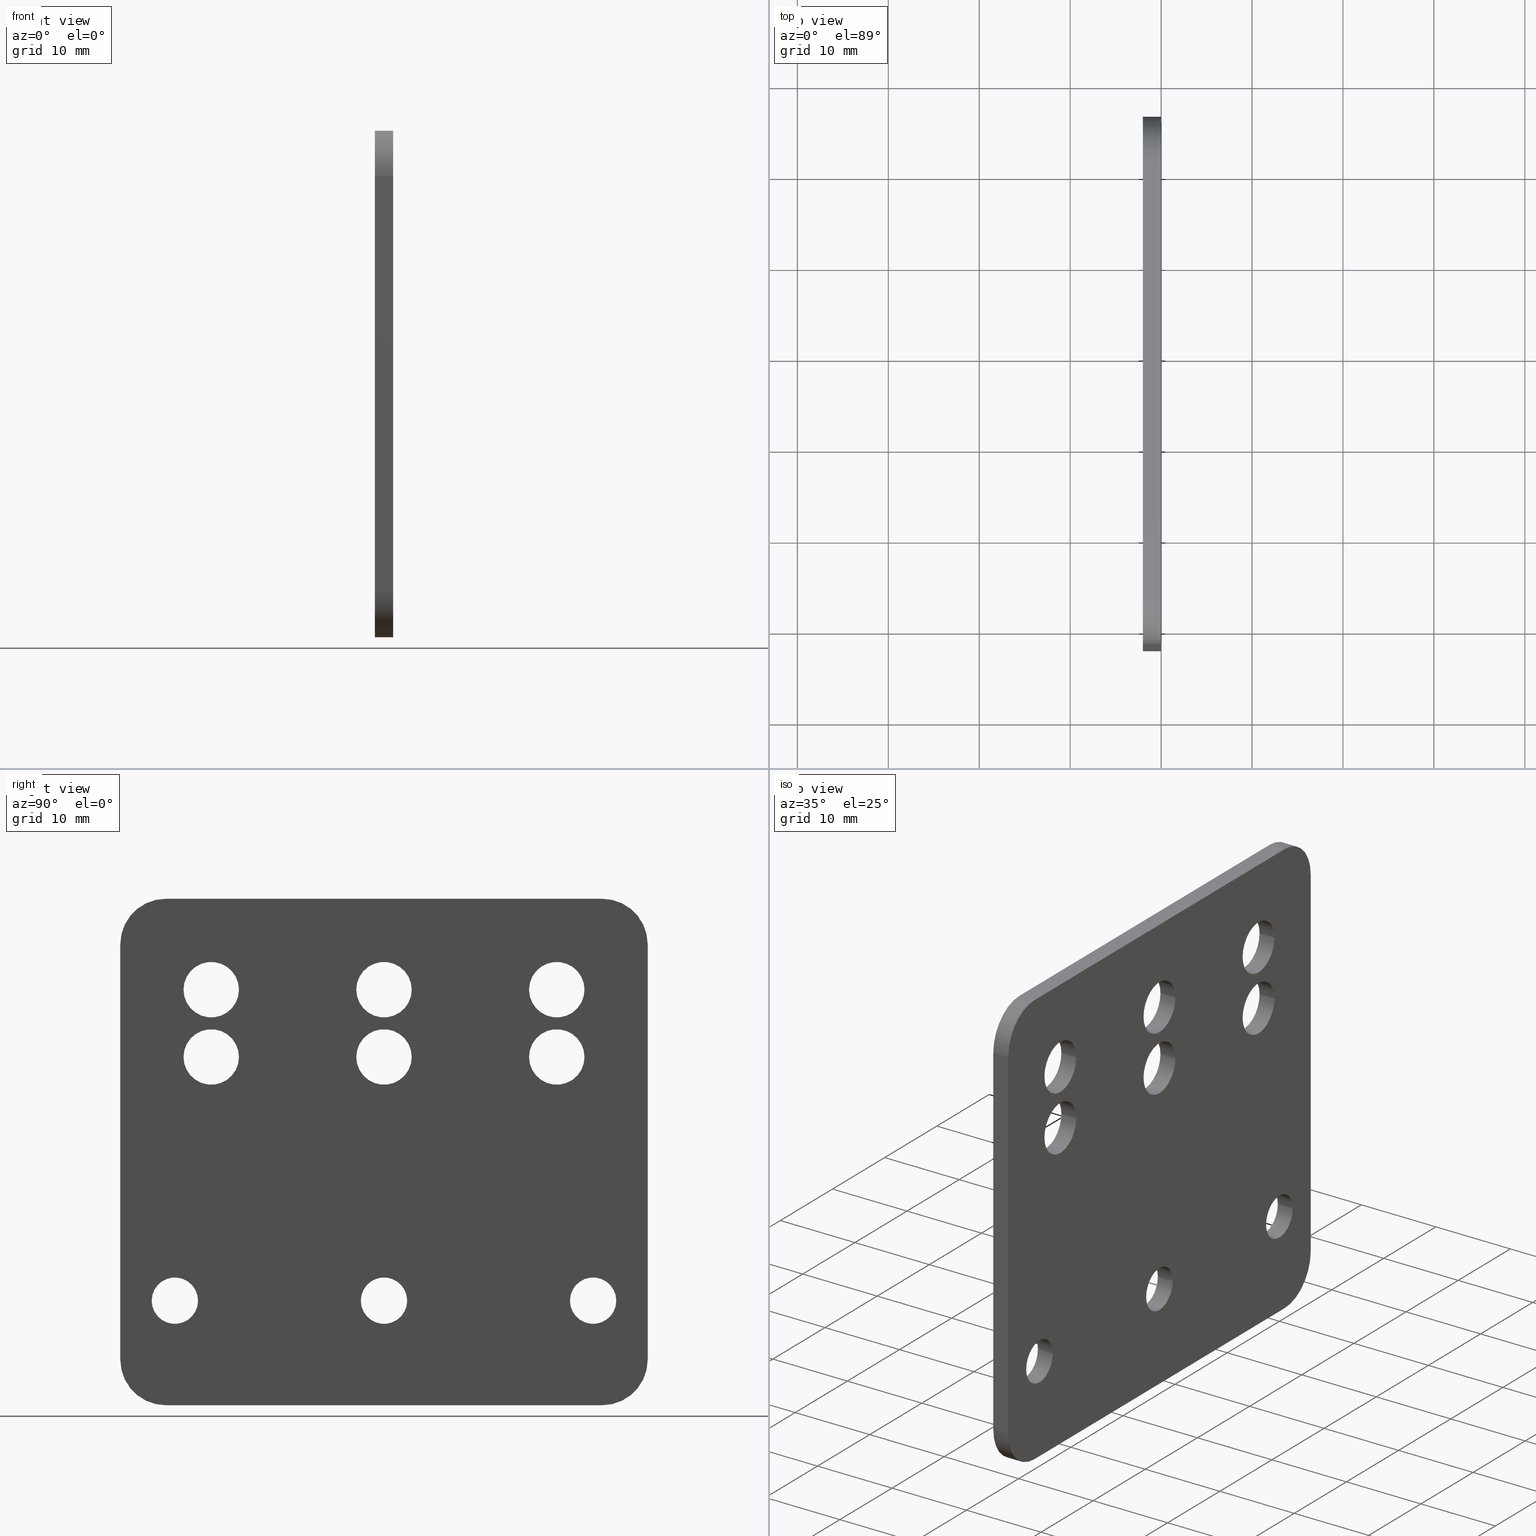
[diagram: canonical four-view strip — front | top / right | iso, engineering-drawing reading convention]
A machine part, canonical four-view strip (front | top / right | iso — engineering-drawing reading convention). The complete STEP part file that produces these views, byte-faithful:
ISO-10303-21;
HEADER;
FILE_DESCRIPTION(('STEP AP214'),'1');
FILE_NAME('GS34.stp','2017-02-01T07:32:37',(' '),(' '),'Spatial InterOp 3D',' ',' ');
FILE_SCHEMA(('automotive_design'));
ENDSEC;
DATA;
#1=MECHANICAL_DESIGN_GEOMETRIC_PRESENTATION_REPRESENTATION(' ',(#10,#11,#12,#13,#14,#15,#16,#17,#18,#19,#20,#21,#22,#23,#24,#25,#26,#27,#28),#6);
#2=PRODUCT_DEFINITION_CONTEXT('',#29,'design');
#3=APPLICATION_PROTOCOL_DEFINITION('INTERNATIONAL STANDARD','automotive_design',1994,#29);
#4=PRODUCT_CATEGORY_RELATIONSHIP('NONE','NONE',#30,#31);
#5=SHAPE_DEFINITION_REPRESENTATION(#32,#33);
#6= (GEOMETRIC_REPRESENTATION_CONTEXT(3)GLOBAL_UNCERTAINTY_ASSIGNED_CONTEXT((#36))GLOBAL_UNIT_ASSIGNED_CONTEXT((#38,#39,#40))REPRESENTATION_CONTEXT('NONE','WORKSPACE'));
#10=STYLED_ITEM('',(#42),#43);
#11=STYLED_ITEM('',(#44),#45);
#12=STYLED_ITEM('',(#46),#47);
#13=STYLED_ITEM('',(#48),#49);
#14=STYLED_ITEM('',(#50),#51);
#15=STYLED_ITEM('',(#52),#53);
#16=STYLED_ITEM('',(#54),#55);
#17=STYLED_ITEM('',(#56),#57);
#18=STYLED_ITEM('',(#58),#59);
#19=STYLED_ITEM('',(#60),#61);
#20=STYLED_ITEM('',(#62),#63);
#21=STYLED_ITEM('',(#64),#65);
#22=STYLED_ITEM('',(#66),#67);
#23=STYLED_ITEM('',(#68),#69);
#24=STYLED_ITEM('',(#70),#71);
#25=STYLED_ITEM('',(#72),#73);
#26=STYLED_ITEM('',(#74),#75);
#27=STYLED_ITEM('',(#76),#77);
#28=STYLED_ITEM('',(#78),#79);
#29=APPLICATION_CONTEXT(' ');
#30=PRODUCT_CATEGORY('part','NONE');
#31=PRODUCT_RELATED_PRODUCT_CATEGORY('detail',' ',(#80));
#32=PRODUCT_DEFINITION_SHAPE('NONE','NONE',#81);
#33=ADVANCED_BREP_SHAPE_REPRESENTATION('GS34',(#82,#83),#6);
#36=UNCERTAINTY_MEASURE_WITH_UNIT(LENGTH_MEASURE(0.001),#38,'','');
#38= (CONVERSION_BASED_UNIT('MILLIMETRE',#86)LENGTH_UNIT()NAMED_UNIT(#89));
#39= (NAMED_UNIT(#91)PLANE_ANGLE_UNIT()SI_UNIT($,.RADIAN.));
#40= (NAMED_UNIT(#91)SOLID_ANGLE_UNIT()SI_UNIT($,.STERADIAN.));
#42=PRESENTATION_STYLE_ASSIGNMENT((#97));
#43=ADVANCED_FACE('',(#98,#99),#100,.F.);
#44=PRESENTATION_STYLE_ASSIGNMENT((#101));
#45=ADVANCED_FACE('',(#102),#103,.T.);
#46=PRESENTATION_STYLE_ASSIGNMENT((#104));
#47=ADVANCED_FACE('',(#105,#106),#107,.F.);
#48=PRESENTATION_STYLE_ASSIGNMENT((#108));
#49=ADVANCED_FACE('',(#109,#110),#111,.F.);
#50=PRESENTATION_STYLE_ASSIGNMENT((#112));
#51=ADVANCED_FACE('',(#113,#114),#115,.F.);
#52=PRESENTATION_STYLE_ASSIGNMENT((#116));
#53=ADVANCED_FACE('',(#117,#118),#119,.F.);
#54=PRESENTATION_STYLE_ASSIGNMENT((#120));
#55=ADVANCED_FACE('',(#121),#122,.F.);
#56=PRESENTATION_STYLE_ASSIGNMENT((#123));
#57=ADVANCED_FACE('',(#124,#125),#126,.F.);
#58=PRESENTATION_STYLE_ASSIGNMENT((#127));
#59=ADVANCED_FACE('',(#128),#129,.F.);
#60=PRESENTATION_STYLE_ASSIGNMENT((#130));
#61=ADVANCED_FACE('',(#131,#132,#133,#134,#135,#136,#137,#138,#139,#140),#141,.F.);
#62=PRESENTATION_STYLE_ASSIGNMENT((#142));
#63=ADVANCED_FACE('',(#143,#144),#145,.F.);
#64=PRESENTATION_STYLE_ASSIGNMENT((#146));
#65=ADVANCED_FACE('',(#147),#148,.T.);
#66=PRESENTATION_STYLE_ASSIGNMENT((#149));
#67=ADVANCED_FACE('',(#150,#151),#152,.F.);
#68=PRESENTATION_STYLE_ASSIGNMENT((#153));
#69=ADVANCED_FACE('',(#154),#155,.T.);
#70=PRESENTATION_STYLE_ASSIGNMENT((#156));
#71=ADVANCED_FACE('',(#157),#158,.T.);
#72=PRESENTATION_STYLE_ASSIGNMENT((#159));
#73=ADVANCED_FACE('',(#160),#161,.F.);
#74=PRESENTATION_STYLE_ASSIGNMENT((#162));
#75=ADVANCED_FACE('',(#163),#164,.F.);
#76=PRESENTATION_STYLE_ASSIGNMENT((#165));
#77=ADVANCED_FACE('',(#166,#167),#168,.F.);
#78=PRESENTATION_STYLE_ASSIGNMENT((#169));
#79=ADVANCED_FACE('',(#170,#171,#172,#173,#174,#175,#176,#177,#178,#179),#180,.T.);
#80=PRODUCT('GS34','GS34','PART-GS34-DESC',(#181));
#81=PRODUCT_DEFINITION('NONE','NONE',#182,#2);
#82=MANIFOLD_SOLID_BREP('GS34',#183);
#83=AXIS2_PLACEMENT_3D('',#184,#185,#186);
#86=LENGTH_MEASURE_WITH_UNIT(LENGTH_MEASURE(1.0),#187);
#89=DIMENSIONAL_EXPONENTS(1.0,0.0,0.0,0.0,0.0,0.0,0.0);
#91=DIMENSIONAL_EXPONENTS(0.0,0.0,0.0,0.0,0.0,0.0,0.0);
#97=SURFACE_STYLE_USAGE(.BOTH.,#188);
#98=FACE_OUTER_BOUND('',#189,.T.);
#99=FACE_OUTER_BOUND('',#190,.T.);
#100=CYLINDRICAL_SURFACE('',#191,3.05);
#101=SURFACE_STYLE_USAGE(.BOTH.,#192);
#102=FACE_OUTER_BOUND('',#193,.T.);
#103=CYLINDRICAL_SURFACE('',#194,5.0);
#104=SURFACE_STYLE_USAGE(.BOTH.,#195);
#105=FACE_OUTER_BOUND('',#196,.T.);
#106=FACE_OUTER_BOUND('',#197,.T.);
#107=CYLINDRICAL_SURFACE('',#198,2.55);
#108=SURFACE_STYLE_USAGE(.BOTH.,#199);
#109=FACE_OUTER_BOUND('',#200,.T.);
#110=FACE_OUTER_BOUND('',#201,.T.);
#111=CYLINDRICAL_SURFACE('',#202,2.55);
#112=SURFACE_STYLE_USAGE(.BOTH.,#203);
#113=FACE_OUTER_BOUND('',#204,.T.);
#114=FACE_OUTER_BOUND('',#205,.T.);
#115=CYLINDRICAL_SURFACE('',#206,3.05);
#116=SURFACE_STYLE_USAGE(.BOTH.,#207);
#117=FACE_OUTER_BOUND('',#208,.T.);
#118=FACE_OUTER_BOUND('',#209,.T.);
#119=CYLINDRICAL_SURFACE('',#210,3.05);
#120=SURFACE_STYLE_USAGE(.BOTH.,#211);
#121=FACE_OUTER_BOUND('',#212,.T.);
#122=PLANE('',#213);
#123=SURFACE_STYLE_USAGE(.BOTH.,#214);
#124=FACE_OUTER_BOUND('',#215,.T.);
#125=FACE_OUTER_BOUND('',#216,.T.);
#126=CYLINDRICAL_SURFACE('',#217,3.05);
#127=SURFACE_STYLE_USAGE(.BOTH.,#218);
#128=FACE_OUTER_BOUND('',#219,.T.);
#129=PLANE('',#220);
#130=SURFACE_STYLE_USAGE(.BOTH.,#221);
#131=FACE_BOUND('',#222,.T.);
#132=FACE_BOUND('',#223,.T.);
#133=FACE_BOUND('',#224,.T.);
#134=FACE_BOUND('',#225,.T.);
#135=FACE_BOUND('',#226,.T.);
#136=FACE_BOUND('',#227,.T.);
#137=FACE_BOUND('',#228,.T.);
#138=FACE_BOUND('',#229,.T.);
#139=FACE_BOUND('',#230,.T.);
#140=FACE_OUTER_BOUND('',#231,.T.);
#141=PLANE('',#232);
#142=SURFACE_STYLE_USAGE(.BOTH.,#233);
#143=FACE_OUTER_BOUND('',#234,.T.);
#144=FACE_OUTER_BOUND('',#235,.T.);
#145=CYLINDRICAL_SURFACE('',#236,3.05);
#146=SURFACE_STYLE_USAGE(.BOTH.,#237);
#147=FACE_OUTER_BOUND('',#238,.T.);
#148=CYLINDRICAL_SURFACE('',#239,5.0);
#149=SURFACE_STYLE_USAGE(.BOTH.,#240);
#150=FACE_OUTER_BOUND('',#241,.T.);
#151=FACE_OUTER_BOUND('',#242,.T.);
#152=CYLINDRICAL_SURFACE('',#243,3.05);
#153=SURFACE_STYLE_USAGE(.BOTH.,#244);
#154=FACE_OUTER_BOUND('',#245,.T.);
#155=CYLINDRICAL_SURFACE('',#246,5.0);
#156=SURFACE_STYLE_USAGE(.BOTH.,#247);
#157=FACE_OUTER_BOUND('',#248,.T.);
#158=CYLINDRICAL_SURFACE('',#249,5.0);
#159=SURFACE_STYLE_USAGE(.BOTH.,#250);
#160=FACE_OUTER_BOUND('',#251,.T.);
#161=PLANE('',#252);
#162=SURFACE_STYLE_USAGE(.BOTH.,#253);
#163=FACE_OUTER_BOUND('',#254,.T.);
#164=PLANE('',#255);
#165=SURFACE_STYLE_USAGE(.BOTH.,#256);
#166=FACE_OUTER_BOUND('',#257,.T.);
#167=FACE_OUTER_BOUND('',#258,.T.);
#168=CYLINDRICAL_SURFACE('',#259,2.55);
#169=SURFACE_STYLE_USAGE(.BOTH.,#260);
#170=FACE_BOUND('',#261,.T.);
#171=FACE_BOUND('',#262,.T.);
#172=FACE_BOUND('',#263,.T.);
#173=FACE_BOUND('',#264,.T.);
#174=FACE_BOUND('',#265,.T.);
#175=FACE_BOUND('',#266,.T.);
#176=FACE_BOUND('',#267,.T.);
#177=FACE_BOUND('',#268,.T.);
#178=FACE_BOUND('',#269,.T.);
#179=FACE_OUTER_BOUND('',#270,.T.);
#180=PLANE('',#271);
#181=PRODUCT_CONTEXT('',#29,'mechanical');
#182=PRODUCT_DEFINITION_FORMATION_WITH_SPECIFIED_SOURCE(' ','NONE',#80,.NOT_KNOWN.);
#183=CLOSED_SHELL('',(#43,#61,#51,#53,#63,#45,#59,#65,#55,#69,#75,#71,#73,#67,#79,#47,#49,#77,#57));
#184=CARTESIAN_POINT('',(0.0,0.0,0.0));
#185=DIRECTION('',(0.0,0.0,1.0));
#186=DIRECTION('',(1.0,0.0,0.0));
#187= (NAMED_UNIT(#89)LENGTH_UNIT()SI_UNIT(.MILLI.,.METRE.));
#188=SURFACE_SIDE_STYLE('',(#273));
#189=EDGE_LOOP('',(#274));
#190=EDGE_LOOP('',(#275));
#191=AXIS2_PLACEMENT_3D('',#276,#277,#278);
#192=SURFACE_SIDE_STYLE('',(#279));
#193=EDGE_LOOP('',(#280,#281,#282,#283));
#194=AXIS2_PLACEMENT_3D('',#284,#285,#286);
#195=SURFACE_SIDE_STYLE('',(#287));
#196=EDGE_LOOP('',(#288));
#197=EDGE_LOOP('',(#289));
#198=AXIS2_PLACEMENT_3D('',#290,#291,#292);
#199=SURFACE_SIDE_STYLE('',(#293));
#200=EDGE_LOOP('',(#294));
#201=EDGE_LOOP('',(#295));
#202=AXIS2_PLACEMENT_3D('',#296,#297,#298);
#203=SURFACE_SIDE_STYLE('',(#299));
#204=EDGE_LOOP('',(#300));
#205=EDGE_LOOP('',(#301));
#206=AXIS2_PLACEMENT_3D('',#302,#303,#304);
#207=SURFACE_SIDE_STYLE('',(#305));
#208=EDGE_LOOP('',(#306));
#209=EDGE_LOOP('',(#307));
#210=AXIS2_PLACEMENT_3D('',#308,#309,#310);
#211=SURFACE_SIDE_STYLE('',(#311));
#212=EDGE_LOOP('',(#312,#313,#314,#315));
#213=AXIS2_PLACEMENT_3D('',#316,#317,#318);
#214=SURFACE_SIDE_STYLE('',(#319));
#215=EDGE_LOOP('',(#320));
#216=EDGE_LOOP('',(#321));
#217=AXIS2_PLACEMENT_3D('',#322,#323,#324);
#218=SURFACE_SIDE_STYLE('',(#325));
#219=EDGE_LOOP('',(#326,#327,#328,#329));
#220=AXIS2_PLACEMENT_3D('',#330,#331,#332);
#221=SURFACE_SIDE_STYLE('',(#333));
#222=EDGE_LOOP('',(#334));
#223=EDGE_LOOP('',(#335));
#224=EDGE_LOOP('',(#336));
#225=EDGE_LOOP('',(#337));
#226=EDGE_LOOP('',(#338));
#227=EDGE_LOOP('',(#339));
#228=EDGE_LOOP('',(#340));
#229=EDGE_LOOP('',(#341));
#230=EDGE_LOOP('',(#342));
#231=EDGE_LOOP('',(#343,#344,#345,#346,#347,#348,#349,#350));
#232=AXIS2_PLACEMENT_3D('',#351,#352,#353);
#233=SURFACE_SIDE_STYLE('',(#354));
#234=EDGE_LOOP('',(#355));
#235=EDGE_LOOP('',(#356));
#236=AXIS2_PLACEMENT_3D('',#357,#358,#359);
#237=SURFACE_SIDE_STYLE('',(#360));
#238=EDGE_LOOP('',(#361,#362,#363,#364));
#239=AXIS2_PLACEMENT_3D('',#365,#366,#367);
#240=SURFACE_SIDE_STYLE('',(#368));
#241=EDGE_LOOP('',(#369));
#242=EDGE_LOOP('',(#370));
#243=AXIS2_PLACEMENT_3D('',#371,#372,#373);
#244=SURFACE_SIDE_STYLE('',(#374));
#245=EDGE_LOOP('',(#375,#376,#377,#378));
#246=AXIS2_PLACEMENT_3D('',#379,#380,#381);
#247=SURFACE_SIDE_STYLE('',(#382));
#248=EDGE_LOOP('',(#383,#384,#385,#386));
#249=AXIS2_PLACEMENT_3D('',#387,#388,#389);
#250=SURFACE_SIDE_STYLE('',(#390));
#251=EDGE_LOOP('',(#391,#392,#393,#394));
#252=AXIS2_PLACEMENT_3D('',#395,#396,#397);
#253=SURFACE_SIDE_STYLE('',(#398));
#254=EDGE_LOOP('',(#399,#400,#401,#402));
#255=AXIS2_PLACEMENT_3D('',#403,#404,#405);
#256=SURFACE_SIDE_STYLE('',(#406));
#257=EDGE_LOOP('',(#407));
#258=EDGE_LOOP('',(#408));
#259=AXIS2_PLACEMENT_3D('',#409,#410,#411);
#260=SURFACE_SIDE_STYLE('',(#412));
#261=EDGE_LOOP('',(#413));
#262=EDGE_LOOP('',(#414));
#263=EDGE_LOOP('',(#415));
#264=EDGE_LOOP('',(#416));
#265=EDGE_LOOP('',(#417));
#266=EDGE_LOOP('',(#418));
#267=EDGE_LOOP('',(#419));
#268=EDGE_LOOP('',(#420));
#269=EDGE_LOOP('',(#421));
#270=EDGE_LOOP('',(#422,#423,#424,#425,#426,#427,#428,#429));
#271=AXIS2_PLACEMENT_3D('',#430,#431,#432);
#273=SURFACE_STYLE_FILL_AREA(#433);
#274=ORIENTED_EDGE('',*,*,#434,.F.);
#275=ORIENTED_EDGE('',*,*,#435,.T.);
#276=CARTESIAN_POINT('',(-1.99999999999978,-4.00000000000315,34.1999999999976));
#277=DIRECTION('',(1.0,0.0,0.0));
#278=DIRECTION('',(0.0,1.0,0.0));
#279=SURFACE_STYLE_FILL_AREA(#436);
#280=ORIENTED_EDGE('',*,*,#437,.T.);
#281=ORIENTED_EDGE('',*,*,#438,.F.);
#282=ORIENTED_EDGE('',*,*,#439,.F.);
#283=ORIENTED_EDGE('',*,*,#440,.T.);
#284=CARTESIAN_POINT('',(-1.99999999999978,-47.0000000000033,-6.50000000000175));
#285=DIRECTION('',(1.0,0.0,0.0));
#286=DIRECTION('',(0.0,1.0,0.0));
#287=SURFACE_STYLE_FILL_AREA(#441);
#288=ORIENTED_EDGE('',*,*,#442,.F.);
#289=ORIENTED_EDGE('',*,*,#443,.T.);
#290=CARTESIAN_POINT('',(-1.99999999999978,-2.7000970903579E-012,-1.79543879763599E-012));
#291=DIRECTION('',(1.0,0.0,0.0));
#292=DIRECTION('',(0.0,1.0,0.0));
#293=SURFACE_STYLE_FILL_AREA(#444);
#294=ORIENTED_EDGE('',*,*,#445,.F.);
#295=ORIENTED_EDGE('',*,*,#446,.T.);
#296=CARTESIAN_POINT('',(-1.99999999999978,-46.000000000003,-1.79543879763599E-012));
#297=DIRECTION('',(1.0,0.0,0.0));
#298=DIRECTION('',(0.0,1.0,0.0));
#299=SURFACE_STYLE_FILL_AREA(#447);
#300=ORIENTED_EDGE('',*,*,#448,.F.);
#301=ORIENTED_EDGE('',*,*,#449,.T.);
#302=CARTESIAN_POINT('',(-1.99999999999978,-4.00000000000315,26.7999999999979));
#303=DIRECTION('',(1.0,0.0,0.0));
#304=DIRECTION('',(0.0,1.0,0.0));
#305=SURFACE_STYLE_FILL_AREA(#450);
#306=ORIENTED_EDGE('',*,*,#451,.F.);
#307=ORIENTED_EDGE('',*,*,#452,.T.);
#308=CARTESIAN_POINT('',(-1.99999999999978,-23.0000000000033,26.7999999999979));
#309=DIRECTION('',(1.0,0.0,0.0));
#310=DIRECTION('',(0.0,1.0,0.0));
#311=SURFACE_STYLE_FILL_AREA(#453);
#312=ORIENTED_EDGE('',*,*,#454,.T.);
#313=ORIENTED_EDGE('',*,*,#455,.F.);
#314=ORIENTED_EDGE('',*,*,#456,.F.);
#315=ORIENTED_EDGE('',*,*,#457,.T.);
#316=CARTESIAN_POINT('',(-1.99999999999978,-47.0000000000033,44.1999999999982));
#317=DIRECTION('',(0.0,0.0,-1.0));
#318=DIRECTION('',(1.0,0.0,0.0));
#319=SURFACE_STYLE_FILL_AREA(#458);
#320=ORIENTED_EDGE('',*,*,#459,.F.);
#321=ORIENTED_EDGE('',*,*,#460,.T.);
#322=CARTESIAN_POINT('',(-1.99999999999978,-42.0000000000025,26.7999999999979));
#323=DIRECTION('',(1.0,0.0,0.0));
#324=DIRECTION('',(0.0,1.0,0.0));
#325=SURFACE_STYLE_FILL_AREA(#461);
#326=ORIENTED_EDGE('',*,*,#462,.T.);
#327=ORIENTED_EDGE('',*,*,#463,.F.);
#328=ORIENTED_EDGE('',*,*,#464,.F.);
#329=ORIENTED_EDGE('',*,*,#438,.T.);
#330=CARTESIAN_POINT('',(-1.99999999999978,-52.0000000000032,-6.50000000000175));
#331=DIRECTION('',(0.0,1.0,0.0));
#332=DIRECTION('',(-1.0,0.0,0.0));
#333=SURFACE_STYLE_FILL_AREA(#465);
#334=ORIENTED_EDGE('',*,*,#435,.F.);
#335=ORIENTED_EDGE('',*,*,#443,.F.);
#336=ORIENTED_EDGE('',*,*,#446,.F.);
#337=ORIENTED_EDGE('',*,*,#466,.F.);
#338=ORIENTED_EDGE('',*,*,#460,.F.);
#339=ORIENTED_EDGE('',*,*,#452,.F.);
#340=ORIENTED_EDGE('',*,*,#449,.F.);
#341=ORIENTED_EDGE('',*,*,#467,.F.);
#342=ORIENTED_EDGE('',*,*,#468,.F.);
#343=ORIENTED_EDGE('',*,*,#437,.F.);
#344=ORIENTED_EDGE('',*,*,#469,.F.);
#345=ORIENTED_EDGE('',*,*,#470,.F.);
#346=ORIENTED_EDGE('',*,*,#471,.F.);
#347=ORIENTED_EDGE('',*,*,#472,.F.);
#348=ORIENTED_EDGE('',*,*,#454,.F.);
#349=ORIENTED_EDGE('',*,*,#473,.F.);
#350=ORIENTED_EDGE('',*,*,#462,.F.);
#351=CARTESIAN_POINT('',(0.0,-47.0000000000033,-6.50000000000175));
#352=DIRECTION('',(-1.0,0.0,0.0));
#353=DIRECTION('',(0.0,-1.0,0.0));
#354=SURFACE_STYLE_FILL_AREA(#474);
#355=ORIENTED_EDGE('',*,*,#475,.F.);
#356=ORIENTED_EDGE('',*,*,#467,.T.);
#357=CARTESIAN_POINT('',(-1.99999999999978,-42.0000000000025,34.1999999999976));
#358=DIRECTION('',(1.0,0.0,0.0));
#359=DIRECTION('',(0.0,1.0,0.0));
#360=SURFACE_STYLE_FILL_AREA(#476);
#361=ORIENTED_EDGE('',*,*,#473,.T.);
#362=ORIENTED_EDGE('',*,*,#457,.F.);
#363=ORIENTED_EDGE('',*,*,#477,.F.);
#364=ORIENTED_EDGE('',*,*,#463,.T.);
#365=CARTESIAN_POINT('',(-1.99999999999978,-47.0000000000033,39.1999999999983));
#366=DIRECTION('',(1.0,0.0,0.0));
#367=DIRECTION('',(0.0,1.0,0.0));
#368=SURFACE_STYLE_FILL_AREA(#478);
#369=ORIENTED_EDGE('',*,*,#479,.F.);
#370=ORIENTED_EDGE('',*,*,#468,.T.);
#371=CARTESIAN_POINT('',(-1.99999999999978,-23.0000000000033,34.1999999999976));
#372=DIRECTION('',(1.0,0.0,0.0));
#373=DIRECTION('',(0.0,1.0,0.0));
#374=SURFACE_STYLE_FILL_AREA(#480);
#375=ORIENTED_EDGE('',*,*,#472,.T.);
#376=ORIENTED_EDGE('',*,*,#481,.F.);
#377=ORIENTED_EDGE('',*,*,#482,.F.);
#378=ORIENTED_EDGE('',*,*,#455,.T.);
#379=CARTESIAN_POINT('',(-1.99999999999978,0.999999999996746,39.1999999999983));
#380=DIRECTION('',(1.0,0.0,0.0));
#381=DIRECTION('',(0.0,1.0,0.0));
#382=SURFACE_STYLE_FILL_AREA(#483);
#383=ORIENTED_EDGE('',*,*,#470,.T.);
#384=ORIENTED_EDGE('',*,*,#484,.F.);
#385=ORIENTED_EDGE('',*,*,#485,.F.);
#386=ORIENTED_EDGE('',*,*,#486,.T.);
#387=CARTESIAN_POINT('',(-1.99999999999978,0.999999999996746,-6.50000000000175));
#388=DIRECTION('',(1.0,0.0,0.0));
#389=DIRECTION('',(0.0,1.0,0.0));
#390=SURFACE_STYLE_FILL_AREA(#487);
#391=ORIENTED_EDGE('',*,*,#469,.T.);
#392=ORIENTED_EDGE('',*,*,#440,.F.);
#393=ORIENTED_EDGE('',*,*,#488,.F.);
#394=ORIENTED_EDGE('',*,*,#484,.T.);
#395=CARTESIAN_POINT('',(-1.99999999999978,0.999999999996746,-11.5000000000025));
#396=DIRECTION('',(0.0,0.0,1.0));
#397=DIRECTION('',(-1.0,0.0,0.0));
#398=SURFACE_STYLE_FILL_AREA(#489);
#399=ORIENTED_EDGE('',*,*,#471,.T.);
#400=ORIENTED_EDGE('',*,*,#486,.F.);
#401=ORIENTED_EDGE('',*,*,#490,.F.);
#402=ORIENTED_EDGE('',*,*,#481,.T.);
#403=CARTESIAN_POINT('',(-1.99999999999978,5.99999999999664,39.1999999999983));
#404=DIRECTION('',(0.0,-1.0,0.0));
#405=DIRECTION('',(1.0,0.0,0.0));
#406=SURFACE_STYLE_FILL_AREA(#491);
#407=ORIENTED_EDGE('',*,*,#492,.F.);
#408=ORIENTED_EDGE('',*,*,#466,.T.);
#409=CARTESIAN_POINT('',(-1.99999999999978,-23.0000000000033,-1.79543879763599E-012));
#410=DIRECTION('',(1.0,0.0,0.0));
#411=DIRECTION('',(0.0,1.0,0.0));
#412=SURFACE_STYLE_FILL_AREA(#493);
#413=ORIENTED_EDGE('',*,*,#434,.T.);
#414=ORIENTED_EDGE('',*,*,#442,.T.);
#415=ORIENTED_EDGE('',*,*,#445,.T.);
#416=ORIENTED_EDGE('',*,*,#492,.T.);
#417=ORIENTED_EDGE('',*,*,#459,.T.);
#418=ORIENTED_EDGE('',*,*,#451,.T.);
#419=ORIENTED_EDGE('',*,*,#448,.T.);
#420=ORIENTED_EDGE('',*,*,#475,.T.);
#421=ORIENTED_EDGE('',*,*,#479,.T.);
#422=ORIENTED_EDGE('',*,*,#439,.T.);
#423=ORIENTED_EDGE('',*,*,#464,.T.);
#424=ORIENTED_EDGE('',*,*,#477,.T.);
#425=ORIENTED_EDGE('',*,*,#456,.T.);
#426=ORIENTED_EDGE('',*,*,#482,.T.);
#427=ORIENTED_EDGE('',*,*,#490,.T.);
#428=ORIENTED_EDGE('',*,*,#485,.T.);
#429=ORIENTED_EDGE('',*,*,#488,.T.);
#430=CARTESIAN_POINT('',(-1.99999999999978,-47.0000000000033,-6.50000000000175));
#431=DIRECTION('',(-1.0,0.0,0.0));
#432=DIRECTION('',(0.0,-1.0,0.0));
#433=FILL_AREA_STYLE('',(#494));
#434=EDGE_CURVE('',#495,#495,#496,.T.);
#435=EDGE_CURVE('',#497,#497,#498,.T.);
#436=FILL_AREA_STYLE('',(#499));
#437=EDGE_CURVE('',#500,#501,#502,.T.);
#438=EDGE_CURVE('',#503,#501,#504,.T.);
#439=EDGE_CURVE('',#505,#503,#506,.T.);
#440=EDGE_CURVE('',#505,#500,#507,.T.);
#441=FILL_AREA_STYLE('',(#508));
#442=EDGE_CURVE('',#509,#509,#510,.T.);
#443=EDGE_CURVE('',#511,#511,#512,.T.);
#444=FILL_AREA_STYLE('',(#513));
#445=EDGE_CURVE('',#514,#514,#515,.T.);
#446=EDGE_CURVE('',#516,#516,#517,.T.);
#447=FILL_AREA_STYLE('',(#518));
#448=EDGE_CURVE('',#519,#519,#520,.T.);
#449=EDGE_CURVE('',#521,#521,#522,.T.);
#450=FILL_AREA_STYLE('',(#523));
#451=EDGE_CURVE('',#524,#524,#525,.T.);
#452=EDGE_CURVE('',#526,#526,#527,.T.);
#453=FILL_AREA_STYLE('',(#528));
#454=EDGE_CURVE('',#529,#530,#531,.T.);
#455=EDGE_CURVE('',#532,#530,#533,.T.);
#456=EDGE_CURVE('',#534,#532,#535,.T.);
#457=EDGE_CURVE('',#534,#529,#536,.T.);
#458=FILL_AREA_STYLE('',(#537));
#459=EDGE_CURVE('',#538,#538,#539,.T.);
#460=EDGE_CURVE('',#540,#540,#541,.T.);
#461=FILL_AREA_STYLE('',(#542));
#462=EDGE_CURVE('',#501,#543,#544,.T.);
#463=EDGE_CURVE('',#545,#543,#546,.T.);
#464=EDGE_CURVE('',#503,#545,#547,.T.);
#465=FILL_AREA_STYLE('',(#548));
#466=EDGE_CURVE('',#549,#549,#550,.T.);
#467=EDGE_CURVE('',#551,#551,#552,.T.);
#468=EDGE_CURVE('',#553,#553,#554,.T.);
#469=EDGE_CURVE('',#555,#500,#556,.T.);
#470=EDGE_CURVE('',#557,#555,#558,.T.);
#471=EDGE_CURVE('',#559,#557,#560,.T.);
#472=EDGE_CURVE('',#530,#559,#561,.T.);
#473=EDGE_CURVE('',#543,#529,#562,.T.);
#474=FILL_AREA_STYLE('',(#563));
#475=EDGE_CURVE('',#564,#564,#565,.T.);
#476=FILL_AREA_STYLE('',(#566));
#477=EDGE_CURVE('',#545,#534,#567,.T.);
#478=FILL_AREA_STYLE('',(#568));
#479=EDGE_CURVE('',#569,#569,#570,.T.);
#480=FILL_AREA_STYLE('',(#571));
#481=EDGE_CURVE('',#572,#559,#573,.T.);
#482=EDGE_CURVE('',#532,#572,#574,.T.);
#483=FILL_AREA_STYLE('',(#575));
#484=EDGE_CURVE('',#576,#555,#577,.T.);
#485=EDGE_CURVE('',#578,#576,#579,.T.);
#486=EDGE_CURVE('',#578,#557,#580,.T.);
#487=FILL_AREA_STYLE('',(#581));
#488=EDGE_CURVE('',#576,#505,#582,.T.);
#489=FILL_AREA_STYLE('',(#583));
#490=EDGE_CURVE('',#572,#578,#584,.T.);
#491=FILL_AREA_STYLE('',(#585));
#492=EDGE_CURVE('',#586,#586,#587,.T.);
#493=FILL_AREA_STYLE('',(#588));
#494=FILL_AREA_STYLE_COLOUR('',#589);
#495=VERTEX_POINT('',#590);
#496=CIRCLE('',#591,3.05);
#497=VERTEX_POINT('',#592);
#498=CIRCLE('',#593,3.05);
#499=FILL_AREA_STYLE_COLOUR('',#594);
#500=VERTEX_POINT('',#595);
#501=VERTEX_POINT('',#596);
#502=CIRCLE('',#597,5.0);
#503=VERTEX_POINT('',#598);
#504=LINE('',#599,#600);
#505=VERTEX_POINT('',#601);
#506=CIRCLE('',#602,5.0);
#507=LINE('',#603,#604);
#508=FILL_AREA_STYLE_COLOUR('',#605);
#509=VERTEX_POINT('',#606);
#510=CIRCLE('',#607,2.55);
#511=VERTEX_POINT('',#608);
#512=CIRCLE('',#609,2.55);
#513=FILL_AREA_STYLE_COLOUR('',#610);
#514=VERTEX_POINT('',#611);
#515=CIRCLE('',#612,2.55);
#516=VERTEX_POINT('',#613);
#517=CIRCLE('',#614,2.55);
#518=FILL_AREA_STYLE_COLOUR('',#615);
#519=VERTEX_POINT('',#616);
#520=CIRCLE('',#617,3.05);
#521=VERTEX_POINT('',#618);
#522=CIRCLE('',#619,3.05);
#523=FILL_AREA_STYLE_COLOUR('',#620);
#524=VERTEX_POINT('',#621);
#525=CIRCLE('',#622,3.05);
#526=VERTEX_POINT('',#623);
#527=CIRCLE('',#624,3.05);
#528=FILL_AREA_STYLE_COLOUR('',#625);
#529=VERTEX_POINT('',#626);
#530=VERTEX_POINT('',#627);
#531=LINE('',#628,#629);
#532=VERTEX_POINT('',#630);
#533=LINE('',#631,#632);
#534=VERTEX_POINT('',#633);
#535=LINE('',#634,#635);
#536=LINE('',#636,#637);
#537=FILL_AREA_STYLE_COLOUR('',#638);
#538=VERTEX_POINT('',#639);
#539=CIRCLE('',#640,3.05);
#540=VERTEX_POINT('',#641);
#541=CIRCLE('',#642,3.05);
#542=FILL_AREA_STYLE_COLOUR('',#643);
#543=VERTEX_POINT('',#644);
#544=LINE('',#645,#646);
#545=VERTEX_POINT('',#647);
#546=LINE('',#648,#649);
#547=LINE('',#650,#651);
#548=FILL_AREA_STYLE_COLOUR('',#652);
#549=VERTEX_POINT('',#653);
#550=CIRCLE('',#654,2.55);
#551=VERTEX_POINT('',#655);
#552=CIRCLE('',#656,3.05);
#553=VERTEX_POINT('',#657);
#554=CIRCLE('',#658,3.05);
#555=VERTEX_POINT('',#659);
#556=LINE('',#660,#661);
#557=VERTEX_POINT('',#662);
#558=CIRCLE('',#663,5.0);
#559=VERTEX_POINT('',#664);
#560=LINE('',#665,#666);
#561=CIRCLE('',#667,5.0);
#562=CIRCLE('',#668,5.0);
#563=FILL_AREA_STYLE_COLOUR('',#669);
#564=VERTEX_POINT('',#670);
#565=CIRCLE('',#671,3.05);
#566=FILL_AREA_STYLE_COLOUR('',#672);
#567=CIRCLE('',#673,5.0);
#568=FILL_AREA_STYLE_COLOUR('',#674);
#569=VERTEX_POINT('',#675);
#570=CIRCLE('',#676,3.05);
#571=FILL_AREA_STYLE_COLOUR('',#677);
#572=VERTEX_POINT('',#678);
#573=LINE('',#679,#680);
#574=CIRCLE('',#681,5.0);
#575=FILL_AREA_STYLE_COLOUR('',#682);
#576=VERTEX_POINT('',#683);
#577=LINE('',#684,#685);
#578=VERTEX_POINT('',#686);
#579=CIRCLE('',#687,5.0);
#580=LINE('',#688,#689);
#581=FILL_AREA_STYLE_COLOUR('',#690);
#582=LINE('',#691,#692);
#583=FILL_AREA_STYLE_COLOUR('',#693);
#584=LINE('',#694,#695);
#585=FILL_AREA_STYLE_COLOUR('',#696);
#586=VERTEX_POINT('',#697);
#587=CIRCLE('',#698,2.55);
#588=FILL_AREA_STYLE_COLOUR('',#699);
#589=COLOUR_RGB('',0.752941191196442,0.752941191196442,0.752941191196442);
#590=CARTESIAN_POINT('',(-1.99999999999978,-0.950000000003151,34.1999999999976));
#591=AXIS2_PLACEMENT_3D('',#700,#701,#702);
#592=CARTESIAN_POINT('',(0.0,-0.950000000003151,34.1999999999976));
#593=AXIS2_PLACEMENT_3D('',#703,#704,#705);
#594=COLOUR_RGB('',0.752941191196442,0.752941191196442,0.752941191196442);
#595=CARTESIAN_POINT('',(0.0,-47.0000000000033,-11.5000000000025));
#596=CARTESIAN_POINT('',(0.0,-52.0000000000032,-6.50000000000175));
#597=AXIS2_PLACEMENT_3D('',#706,#707,#708);
#598=CARTESIAN_POINT('',(-1.99999999999978,-52.0000000000032,-6.50000000000175));
#599=CARTESIAN_POINT('',(-1.99999999999978,-52.0000000000032,-6.50000000000175));
#600=VECTOR('',#709,1.0);
#601=CARTESIAN_POINT('',(-1.99999999999978,-47.0000000000033,-11.5000000000025));
#602=AXIS2_PLACEMENT_3D('',#710,#711,#712);
#603=CARTESIAN_POINT('',(-1.99999999999978,-47.0000000000033,-11.5000000000025));
#604=VECTOR('',#713,1.0);
#605=COLOUR_RGB('',0.752941191196442,0.752941191196442,0.752941191196442);
#606=CARTESIAN_POINT('',(-1.99999999999978,2.54999999999757,-1.79543879763599E-012));
#607=AXIS2_PLACEMENT_3D('',#714,#715,#716);
#608=CARTESIAN_POINT('',(0.0,2.54999999999757,-1.79543879763599E-012));
#609=AXIS2_PLACEMENT_3D('',#717,#718,#719);
#610=COLOUR_RGB('',0.752941191196442,0.752941191196442,0.752941191196442);
#611=CARTESIAN_POINT('',(-1.99999999999978,-43.4500000000027,-1.79543879763599E-012));
#612=AXIS2_PLACEMENT_3D('',#720,#721,#722);
#613=CARTESIAN_POINT('',(0.0,-43.4500000000027,-1.79543879763599E-012));
#614=AXIS2_PLACEMENT_3D('',#723,#724,#725);
#615=COLOUR_RGB('',0.752941191196442,0.752941191196442,0.752941191196442);
#616=CARTESIAN_POINT('',(-1.99999999999978,-0.950000000003151,26.7999999999979));
#617=AXIS2_PLACEMENT_3D('',#726,#727,#728);
#618=CARTESIAN_POINT('',(0.0,-0.950000000003151,26.7999999999979));
#619=AXIS2_PLACEMENT_3D('',#729,#730,#731);
#620=COLOUR_RGB('',0.752941191196442,0.752941191196442,0.752941191196442);
#621=CARTESIAN_POINT('',(-1.99999999999978,-19.9500000000033,26.7999999999979));
#622=AXIS2_PLACEMENT_3D('',#732,#733,#734);
#623=CARTESIAN_POINT('',(0.0,-19.9500000000033,26.7999999999979));
#624=AXIS2_PLACEMENT_3D('',#735,#736,#737);
#625=COLOUR_RGB('',0.752941191196442,0.752941191196442,0.752941191196442);
#626=CARTESIAN_POINT('',(0.0,-47.0000000000033,44.1999999999982));
#627=CARTESIAN_POINT('',(0.0,0.999999999996746,44.1999999999982));
#628=CARTESIAN_POINT('',(0.0,-47.0000000000033,44.1999999999982));
#629=VECTOR('',#738,1.0);
#630=CARTESIAN_POINT('',(-1.99999999999978,0.999999999996746,44.1999999999982));
#631=CARTESIAN_POINT('',(-1.99999999999978,0.999999999996746,44.1999999999982));
#632=VECTOR('',#739,1.0);
#633=CARTESIAN_POINT('',(-1.99999999999978,-47.0000000000033,44.1999999999982));
#634=CARTESIAN_POINT('',(-1.99999999999978,-47.0000000000033,44.1999999999982));
#635=VECTOR('',#740,1.0);
#636=CARTESIAN_POINT('',(-1.99999999999978,-47.0000000000033,44.1999999999982));
#637=VECTOR('',#741,1.0);
#638=COLOUR_RGB('',0.752941191196442,0.752941191196442,0.752941191196442);
#639=CARTESIAN_POINT('',(-1.99999999999978,-38.9500000000025,26.7999999999979));
#640=AXIS2_PLACEMENT_3D('',#742,#743,#744);
#641=CARTESIAN_POINT('',(0.0,-38.9500000000025,26.7999999999979));
#642=AXIS2_PLACEMENT_3D('',#745,#746,#747);
#643=COLOUR_RGB('',0.752941191196442,0.752941191196442,0.752941191196442);
#644=CARTESIAN_POINT('',(0.0,-52.0000000000032,39.1999999999983));
#645=CARTESIAN_POINT('',(0.0,-52.0000000000032,-6.50000000000175));
#646=VECTOR('',#748,1.0);
#647=CARTESIAN_POINT('',(-1.99999999999978,-52.0000000000032,39.1999999999983));
#648=CARTESIAN_POINT('',(-1.99999999999978,-52.0000000000032,39.1999999999983));
#649=VECTOR('',#749,1.0);
#650=CARTESIAN_POINT('',(-1.99999999999978,-52.0000000000032,-6.50000000000175));
#651=VECTOR('',#750,1.0);
#652=COLOUR_RGB('',0.752941191196442,0.752941191196442,0.752941191196442);
#653=CARTESIAN_POINT('',(0.0,-20.450000000003,-1.79543879763599E-012));
#654=AXIS2_PLACEMENT_3D('',#751,#752,#753);
#655=CARTESIAN_POINT('',(0.0,-38.9500000000025,34.1999999999976));
#656=AXIS2_PLACEMENT_3D('',#754,#755,#756);
#657=CARTESIAN_POINT('',(0.0,-19.9500000000033,34.1999999999976));
#658=AXIS2_PLACEMENT_3D('',#757,#758,#759);
#659=CARTESIAN_POINT('',(0.0,0.999999999996746,-11.5000000000025));
#660=CARTESIAN_POINT('',(0.0,0.999999999996746,-11.5000000000025));
#661=VECTOR('',#760,1.0);
#662=CARTESIAN_POINT('',(0.0,5.99999999999664,-6.50000000000175));
#663=AXIS2_PLACEMENT_3D('',#761,#762,#763);
#664=CARTESIAN_POINT('',(0.0,5.99999999999664,39.1999999999983));
#665=CARTESIAN_POINT('',(0.0,5.99999999999664,39.1999999999983));
#666=VECTOR('',#764,1.0);
#667=AXIS2_PLACEMENT_3D('',#765,#766,#767);
#668=AXIS2_PLACEMENT_3D('',#768,#769,#770);
#669=COLOUR_RGB('',0.752941191196442,0.752941191196442,0.752941191196442);
#670=CARTESIAN_POINT('',(-1.99999999999978,-38.9500000000025,34.1999999999976));
#671=AXIS2_PLACEMENT_3D('',#771,#772,#773);
#672=COLOUR_RGB('',0.752941191196442,0.752941191196442,0.752941191196442);
#673=AXIS2_PLACEMENT_3D('',#774,#775,#776);
#674=COLOUR_RGB('',0.752941191196442,0.752941191196442,0.752941191196442);
#675=CARTESIAN_POINT('',(-1.99999999999978,-19.9500000000033,34.1999999999976));
#676=AXIS2_PLACEMENT_3D('',#777,#778,#779);
#677=COLOUR_RGB('',0.752941191196442,0.752941191196442,0.752941191196442);
#678=CARTESIAN_POINT('',(-1.99999999999978,5.99999999999664,39.1999999999983));
#679=CARTESIAN_POINT('',(-1.99999999999978,5.99999999999664,39.1999999999983));
#680=VECTOR('',#780,1.0);
#681=AXIS2_PLACEMENT_3D('',#781,#782,#783);
#682=COLOUR_RGB('',0.752941191196442,0.752941191196442,0.752941191196442);
#683=CARTESIAN_POINT('',(-1.99999999999978,0.999999999996746,-11.5000000000025));
#684=CARTESIAN_POINT('',(-1.99999999999978,0.999999999996746,-11.5000000000025));
#685=VECTOR('',#784,1.0);
#686=CARTESIAN_POINT('',(-1.99999999999978,5.99999999999664,-6.50000000000175));
#687=AXIS2_PLACEMENT_3D('',#785,#786,#787);
#688=CARTESIAN_POINT('',(-1.99999999999978,5.99999999999664,-6.50000000000175));
#689=VECTOR('',#788,1.0);
#690=COLOUR_RGB('',0.752941191196442,0.752941191196442,0.752941191196442);
#691=CARTESIAN_POINT('',(-1.99999999999978,0.999999999996746,-11.5000000000025));
#692=VECTOR('',#789,1.0);
#693=COLOUR_RGB('',0.752941191196442,0.752941191196442,0.752941191196442);
#694=CARTESIAN_POINT('',(-1.99999999999978,5.99999999999664,39.1999999999983));
#695=VECTOR('',#790,1.0);
#696=COLOUR_RGB('',0.752941191196442,0.752941191196442,0.752941191196442);
#697=CARTESIAN_POINT('',(-1.99999999999978,-20.450000000003,-1.79543879763599E-012));
#698=AXIS2_PLACEMENT_3D('',#791,#792,#793);
#699=COLOUR_RGB('',0.752941191196442,0.752941191196442,0.752941191196442);
#700=CARTESIAN_POINT('',(-1.99999999999978,-4.00000000000315,34.1999999999976));
#701=DIRECTION('',(1.0,0.0,0.0));
#702=DIRECTION('',(0.0,1.0,0.0));
#703=CARTESIAN_POINT('',(0.0,-4.00000000000315,34.1999999999976));
#704=DIRECTION('',(1.0,0.0,0.0));
#705=DIRECTION('',(0.0,1.0,0.0));
#706=CARTESIAN_POINT('',(0.0,-47.0000000000033,-6.50000000000175));
#707=DIRECTION('',(-1.0,0.0,0.0));
#708=DIRECTION('',(0.0,-1.0,0.0));
#709=DIRECTION('',(1.0,0.0,0.0));
#710=CARTESIAN_POINT('',(-1.99999999999978,-47.0000000000033,-6.50000000000175));
#711=DIRECTION('',(-1.0,0.0,0.0));
#712=DIRECTION('',(0.0,-1.0,0.0));
#713=DIRECTION('',(1.0,0.0,0.0));
#714=CARTESIAN_POINT('',(-1.99999999999978,-2.7000970903579E-012,-1.79543879763599E-012));
#715=DIRECTION('',(1.0,0.0,0.0));
#716=DIRECTION('',(0.0,1.0,0.0));
#717=CARTESIAN_POINT('',(0.0,-2.7000970903579E-012,-1.79543879763599E-012));
#718=DIRECTION('',(1.0,0.0,0.0));
#719=DIRECTION('',(0.0,1.0,0.0));
#720=CARTESIAN_POINT('',(-1.99999999999978,-46.000000000003,-1.79543879763599E-012));
#721=DIRECTION('',(1.0,0.0,0.0));
#722=DIRECTION('',(0.0,1.0,0.0));
#723=CARTESIAN_POINT('',(0.0,-46.000000000003,-1.79543879763599E-012));
#724=DIRECTION('',(1.0,0.0,0.0));
#725=DIRECTION('',(0.0,1.0,0.0));
#726=CARTESIAN_POINT('',(-1.99999999999978,-4.00000000000315,26.7999999999979));
#727=DIRECTION('',(1.0,0.0,0.0));
#728=DIRECTION('',(0.0,1.0,0.0));
#729=CARTESIAN_POINT('',(0.0,-4.00000000000315,26.7999999999979));
#730=DIRECTION('',(1.0,0.0,0.0));
#731=DIRECTION('',(0.0,1.0,0.0));
#732=CARTESIAN_POINT('',(-1.99999999999978,-23.0000000000033,26.7999999999979));
#733=DIRECTION('',(1.0,0.0,0.0));
#734=DIRECTION('',(0.0,1.0,0.0));
#735=CARTESIAN_POINT('',(0.0,-23.0000000000033,26.7999999999979));
#736=DIRECTION('',(1.0,0.0,0.0));
#737=DIRECTION('',(0.0,1.0,0.0));
#738=DIRECTION('',(0.0,1.0,0.0));
#739=DIRECTION('',(1.0,0.0,0.0));
#740=DIRECTION('',(0.0,1.0,0.0));
#741=DIRECTION('',(1.0,0.0,0.0));
#742=CARTESIAN_POINT('',(-1.99999999999978,-42.0000000000025,26.7999999999979));
#743=DIRECTION('',(1.0,0.0,0.0));
#744=DIRECTION('',(0.0,1.0,0.0));
#745=CARTESIAN_POINT('',(0.0,-42.0000000000025,26.7999999999979));
#746=DIRECTION('',(1.0,0.0,0.0));
#747=DIRECTION('',(0.0,1.0,0.0));
#748=DIRECTION('',(0.0,0.0,1.0));
#749=DIRECTION('',(1.0,0.0,0.0));
#750=DIRECTION('',(0.0,0.0,1.0));
#751=CARTESIAN_POINT('',(0.0,-23.0000000000033,-1.79543879763599E-012));
#752=DIRECTION('',(1.0,0.0,0.0));
#753=DIRECTION('',(0.0,1.0,0.0));
#754=CARTESIAN_POINT('',(0.0,-42.0000000000025,34.1999999999976));
#755=DIRECTION('',(1.0,0.0,0.0));
#756=DIRECTION('',(0.0,1.0,0.0));
#757=CARTESIAN_POINT('',(0.0,-23.0000000000033,34.1999999999976));
#758=DIRECTION('',(1.0,0.0,0.0));
#759=DIRECTION('',(0.0,1.0,0.0));
#760=DIRECTION('',(0.0,-1.0,0.0));
#761=CARTESIAN_POINT('',(0.0,0.999999999996746,-6.50000000000175));
#762=DIRECTION('',(-1.0,0.0,0.0));
#763=DIRECTION('',(0.0,-1.0,0.0));
#764=DIRECTION('',(0.0,0.0,-1.0));
#765=CARTESIAN_POINT('',(0.0,0.999999999996746,39.1999999999983));
#766=DIRECTION('',(-1.0,0.0,0.0));
#767=DIRECTION('',(0.0,-1.0,0.0));
#768=CARTESIAN_POINT('',(0.0,-47.0000000000033,39.1999999999983));
#769=DIRECTION('',(-1.0,0.0,0.0));
#770=DIRECTION('',(0.0,-1.0,0.0));
#771=CARTESIAN_POINT('',(-1.99999999999978,-42.0000000000025,34.1999999999976));
#772=DIRECTION('',(1.0,0.0,0.0));
#773=DIRECTION('',(0.0,1.0,0.0));
#774=CARTESIAN_POINT('',(-1.99999999999978,-47.0000000000033,39.1999999999983));
#775=DIRECTION('',(-1.0,0.0,0.0));
#776=DIRECTION('',(0.0,-1.0,0.0));
#777=CARTESIAN_POINT('',(-1.99999999999978,-23.0000000000033,34.1999999999976));
#778=DIRECTION('',(1.0,0.0,0.0));
#779=DIRECTION('',(0.0,1.0,0.0));
#780=DIRECTION('',(1.0,0.0,0.0));
#781=CARTESIAN_POINT('',(-1.99999999999978,0.999999999996746,39.1999999999983));
#782=DIRECTION('',(-1.0,0.0,0.0));
#783=DIRECTION('',(0.0,-1.0,0.0));
#784=DIRECTION('',(1.0,0.0,0.0));
#785=CARTESIAN_POINT('',(-1.99999999999978,0.999999999996746,-6.50000000000175));
#786=DIRECTION('',(-1.0,0.0,0.0));
#787=DIRECTION('',(0.0,-1.0,0.0));
#788=DIRECTION('',(1.0,0.0,0.0));
#789=DIRECTION('',(0.0,-1.0,0.0));
#790=DIRECTION('',(0.0,0.0,-1.0));
#791=CARTESIAN_POINT('',(-1.99999999999978,-23.0000000000033,-1.79543879763599E-012));
#792=DIRECTION('',(1.0,0.0,0.0));
#793=DIRECTION('',(0.0,1.0,0.0));
ENDSEC;
END-ISO-10303-21;
